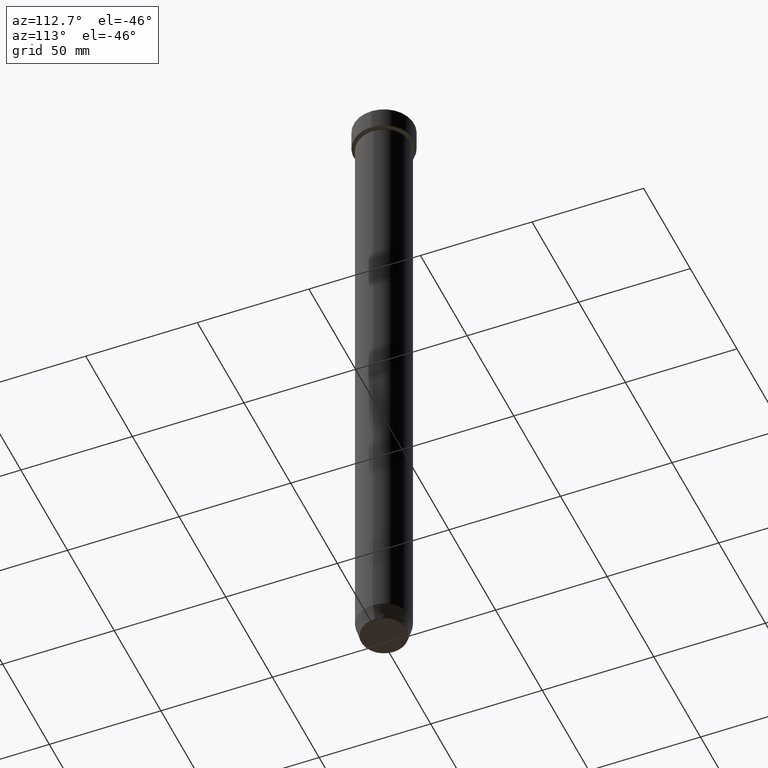
[diagram: clean part render]
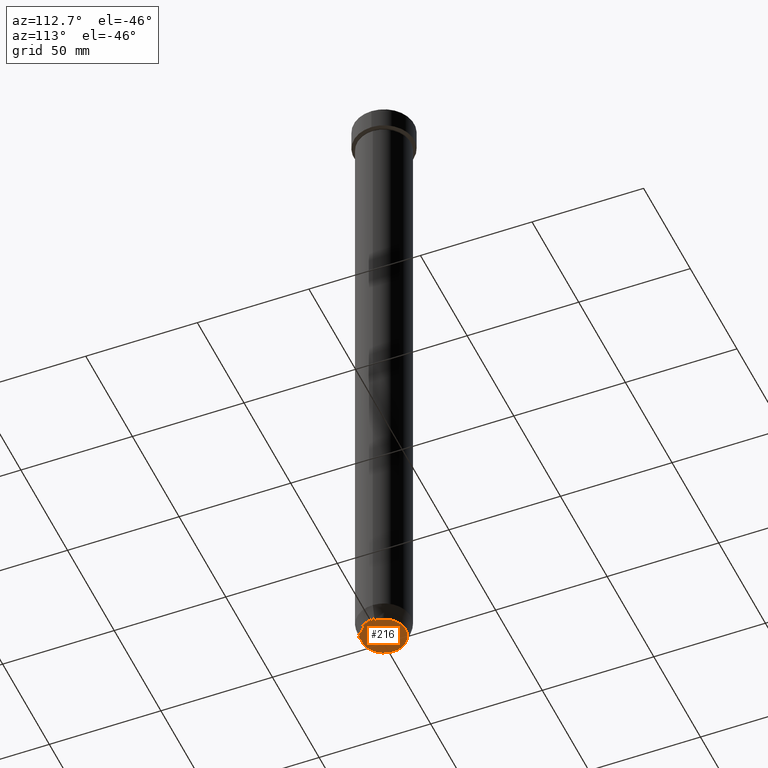
[diagram: same view with one face highlighted and labeled with its STEP entity id]
A machine part, auxiliary view. The second image highlights one B-rep face of the part: STEP entity #216.
In plain terms, the highlighted planar face has unit normal (0, -0, 1).
Its self-contained STEP definition (entity closure, byte-faithful):
#17 = PLANE ( 'NONE',  #356 ) ;
#45 = CARTESIAN_POINT ( 'NONE',  ( 0.000000000000000000, 0.000000000000000000, -300.0000000000000568 ) ) ;
#74 = DIRECTION ( 'NONE',  ( 1.000000000000000000, 0.000000000000000000, 0.000000000000000000 ) ) ;
#140 = CIRCLE ( 'NONE', #178, 9.740692158992656502 ) ;
#146 = DIRECTION ( 'NONE',  ( 0.000000000000000000, 0.000000000000000000, -1.000000000000000000 ) ) ;
#163 = VERTEX_POINT ( 'NONE', #204 ) ;
#169 = DIRECTION ( 'NONE',  ( 0.000000000000000000, 0.000000000000000000, -1.000000000000000000 ) ) ;
#176 = EDGE_LOOP ( 'NONE', ( #545, #457 ) ) ;
#178 = AXIS2_PLACEMENT_3D ( 'NONE', #45, #146, #279 ) ;
#204 = CARTESIAN_POINT ( 'NONE',  ( 9.740692158992656502, 0.000000000000000000, -300.0000000000000568 ) ) ;
#216 = ADVANCED_FACE ( 'NONE', ( #352 ), #17, .F. ) ;
#225 = CARTESIAN_POINT ( 'NONE',  ( -9.740692158992656502, 1.222463696683474604E-15, -300.0000000000000568 ) ) ;
#238 = AXIS2_PLACEMENT_3D ( 'NONE', #488, #169, #74 ) ;
#257 = DIRECTION ( 'NONE',  ( 0.000000000000000000, -0.000000000000000000, 1.000000000000000000 ) ) ;
#279 = DIRECTION ( 'NONE',  ( 1.000000000000000000, 0.000000000000000000, 0.000000000000000000 ) ) ;
#296 = EDGE_CURVE ( 'NONE', #163, #340, #577, .T. ) ;
#340 = VERTEX_POINT ( 'NONE', #225 ) ;
#349 = CARTESIAN_POINT ( 'NONE',  ( 0.000000000000000000, 3.061616997868383753E-14, -300.0000000000000568 ) ) ;
#352 = FACE_OUTER_BOUND ( 'NONE', #176, .T. ) ;
#356 = AXIS2_PLACEMENT_3D ( 'NONE', #349, #257, #476 ) ;
#457 = ORIENTED_EDGE ( 'NONE', *, *, #575, .T. ) ;
#476 = DIRECTION ( 'NONE',  ( 1.000000000000000000, 0.000000000000000000, 0.000000000000000000 ) ) ;
#488 = CARTESIAN_POINT ( 'NONE',  ( 0.000000000000000000, 0.000000000000000000, -300.0000000000000568 ) ) ;
#545 = ORIENTED_EDGE ( 'NONE', *, *, #296, .T. ) ;
#575 = EDGE_CURVE ( 'NONE', #340, #163, #140, .T. ) ;
#577 = CIRCLE ( 'NONE', #238, 9.740692158992656502 ) ;